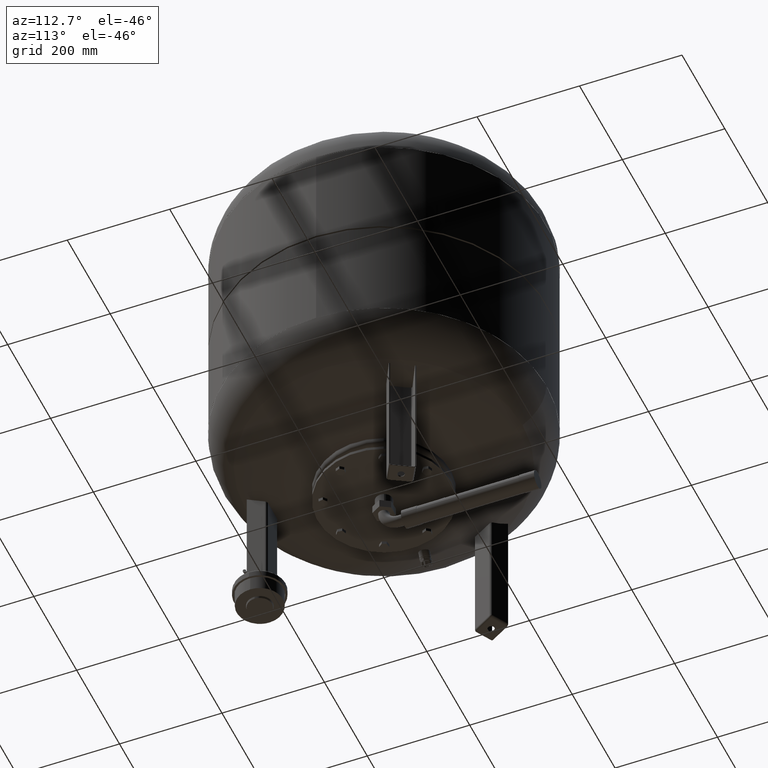
[diagram: clean part render]
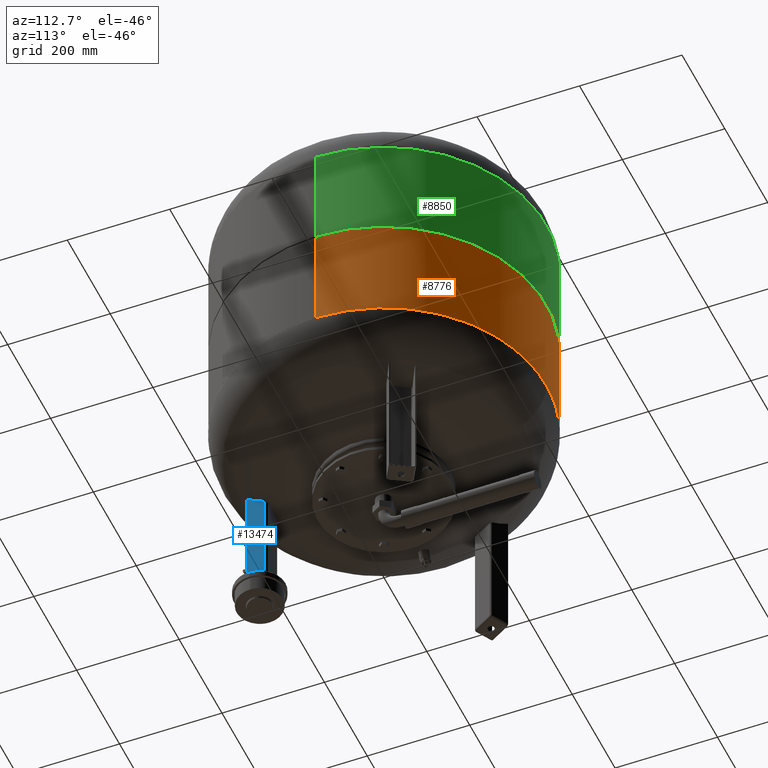
[diagram: same view with three faces highlighted in distinct colors, each labeled with its STEP entity id]
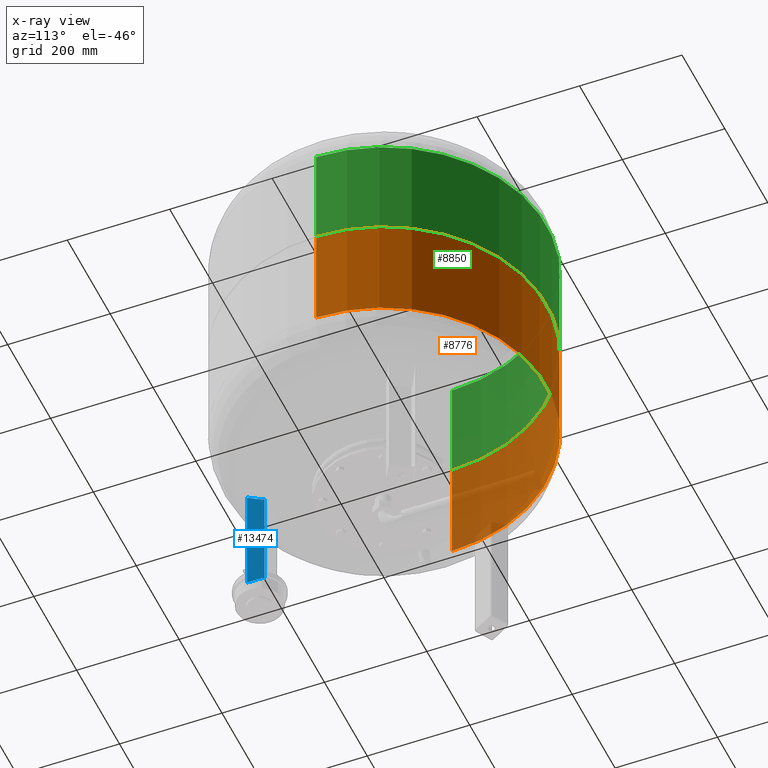
[diagram: x-ray of the same camera — body ghosted, the three highlighted faces saturated]
A machine part, auxiliary view with three faces highlighted in distinct colors.
The next image is the same camera in x-ray (body ghosted, the three faces saturated) — at least one of them is partly hidden behind the body in this view.
Their STEP definitions:

[orange] entity #8776 — the highlighted cylindrical surface (partial cylindrical patch) has radius 317 mm, axis along (-0, 0, -1).
#8735=CARTESIAN_POINT('',(-4.392344E-015,1.021843E-030,456.0));
#8736=DIRECTION('',(-4.223408E-017,9.825415E-033,-1.0));
#8737=DIRECTION('',(1.0,0.0,0.0));
#8738=AXIS2_PLACEMENT_3D('',#8735,#8736,#8737);
#8739=CYLINDRICAL_SURFACE('',#8738,317.0);
#8740=CARTESIAN_POINT('',(317.0,3.882130E-014,352.0));
#8741=VERTEX_POINT('',#8740);
#8742=CARTESIAN_POINT('',(316.999999999999940,3.882130E-014,560.0));
#8743=VERTEX_POINT('',#8742);
#8744=CARTESIAN_POINT('',(317.0,3.882130E-014,352.0));
#8745=DIRECTION('',(0.0,0.0,1.0));
#8746=VECTOR('',#8745,208.0);
#8747=LINE('',#8744,#8746);
#8748=EDGE_CURVE('',#8741,#8743,#8747,.T.);
#8749=ORIENTED_EDGE('',*,*,#8748,.F.);
#8750=CARTESIAN_POINT('',(-317.0,-1.282117E-018,352.0));
#8751=VERTEX_POINT('',#8750);
#8752=CARTESIAN_POINT('',(-8.784689E-015,2.043686E-030,352.0));
#8753=DIRECTION('',(0.0,0.0,-1.0));
#8754=DIRECTION('',(1.0,0.0,0.0));
#8755=AXIS2_PLACEMENT_3D('',#8752,#8753,#8754);
#8756=CIRCLE('',#8755,317.0);
#8757=EDGE_CURVE('',#8751,#8741,#8756,.T.);
#8758=ORIENTED_EDGE('',*,*,#8757,.F.);
#8759=CARTESIAN_POINT('',(-317.0,-1.282117E-018,560.000000000000110));
#8760=VERTEX_POINT('',#8759);
#8761=CARTESIAN_POINT('',(-317.0,-1.282117E-018,352.0));
#8762=DIRECTION('',(0.0,0.0,1.0));
#8763=VECTOR('',#8762,208.000000000000110);
#8764=LINE('',#8761,#8763);
#8765=EDGE_CURVE('',#8751,#8760,#8764,.T.);
#8766=ORIENTED_EDGE('',*,*,#8765,.T.);
#8767=CARTESIAN_POINT('',(-4.065149E-031,4.830380E-046,560.0));
#8768=DIRECTION('',(0.0,0.0,-1.0));
#8769=DIRECTION('',(1.0,0.0,0.0));
#8770=AXIS2_PLACEMENT_3D('',#8767,#8768,#8769);
#8771=CIRCLE('',#8770,316.999999999999940);
#8772=EDGE_CURVE('',#8760,#8743,#8771,.T.);
#8773=ORIENTED_EDGE('',*,*,#8772,.T.);
#8774=EDGE_LOOP('',(#8749,#8758,#8766,#8773));
#8775=FACE_OUTER_BOUND('',#8774,.T.);
#8776=ADVANCED_FACE('',(#8775),#8739,.T.);

[blue] entity #13474 — the highlighted planar face has unit normal (1, 0, 0).
#13221=CARTESIAN_POINT('',(25.000000000000007,-257.499999999999940,266.651109274815040));
#13222=VERTEX_POINT('',#13221);
#13230=CARTESIAN_POINT('',(25.0,-222.500000000000000,247.889783531367410));
#13231=VERTEX_POINT('',#13230);
#13232=CARTESIAN_POINT('',(24.999999999999925,-8.526513E-014,705.0));
#13233=DIRECTION('',(-1.0,0.0,0.0));
#13234=DIRECTION('',(0.0,0.0,1.0));
#13235=AXIS2_PLACEMENT_3D('',#13232,#13233,#13234);
#13236=CIRCLE('',#13235,508.385680364819170);
#13237=EDGE_CURVE('',#13231,#13222,#13236,.T.);
#13431=CARTESIAN_POINT('',(24.999999999999996,-222.500000000000000,45.999999999999979));
#13432=VERTEX_POINT('',#13431);
#13433=CARTESIAN_POINT('',(25.0,-222.500000000000000,247.889783531367410));
#13434=DIRECTION('',(0.0,0.0,-1.0));
#13435=VECTOR('',#13434,201.889783531367440);
#13436=LINE('',#13433,#13435);
#13437=EDGE_CURVE('',#13231,#13432,#13436,.T.);
#13451=CARTESIAN_POINT('',(24.999999999999996,-217.500000000000000,45.999999999999979));
#13452=DIRECTION('',(1.0,0.0,0.0));
#13453=DIRECTION('',(0.0,1.0,0.0));
#13454=AXIS2_PLACEMENT_3D('',#13451,#13452,#13453);
#13455=PLANE('',#13454);
#13456=CARTESIAN_POINT('',(25.000000000000007,-257.500000000000000,45.999999999999979));
#13457=VERTEX_POINT('',#13456);
#13458=CARTESIAN_POINT('',(25.000000000000007,-257.500000000000000,45.999999999999979));
#13459=DIRECTION('',(0.0,0.0,1.0));
#13460=VECTOR('',#13459,220.651109274815070);
#13461=LINE('',#13458,#13460);
#13462=EDGE_CURVE('',#13457,#13222,#13461,.T.);
#13463=ORIENTED_EDGE('',*,*,#13462,.F.);
#13464=CARTESIAN_POINT('',(24.999999999999996,-222.500000000000000,45.999999999999979));
#13465=DIRECTION('',(0.0,-1.0,0.0));
#13466=VECTOR('',#13465,35.0);
#13467=LINE('',#13464,#13466);
#13468=EDGE_CURVE('',#13432,#13457,#13467,.T.);
#13469=ORIENTED_EDGE('',*,*,#13468,.F.);
#13470=ORIENTED_EDGE('',*,*,#13437,.F.);
#13471=ORIENTED_EDGE('',*,*,#13237,.T.);
#13472=EDGE_LOOP('',(#13463,#13469,#13470,#13471));
#13473=FACE_OUTER_BOUND('',#13472,.T.);
#13474=ADVANCED_FACE('',(#13473),#13455,.T.);

[green] entity #8850 — the highlighted cylindrical surface (partial cylindrical patch) has radius 317 mm, axis along (-0, 0, -1).
#8784=CARTESIAN_POINT('',(316.999999999999830,3.882130E-014,563.500000000000000));
#8785=VERTEX_POINT('',#8784);
#8801=CARTESIAN_POINT('',(-316.999999999999940,-1.282117E-018,563.500000000000000));
#8802=VERTEX_POINT('',#8801);
#8809=CARTESIAN_POINT('',(1.478193E-016,-3.438895E-032,563.500000000000000));
#8810=DIRECTION('',(0.0,0.0,-1.0));
#8811=DIRECTION('',(1.0,0.0,0.0));
#8812=AXIS2_PLACEMENT_3D('',#8809,#8810,#8811);
#8813=CIRCLE('',#8812,316.999999999999830);
#8814=EDGE_CURVE('',#8802,#8785,#8813,.T.);
#8819=CARTESIAN_POINT('',(5.224356E-015,-1.215404E-030,683.700000000000050));
#8820=DIRECTION('',(-4.223408E-017,9.825415E-033,-1.0));
#8821=DIRECTION('',(1.0,0.0,0.0));
#8822=AXIS2_PLACEMENT_3D('',#8819,#8820,#8821);
#8823=CYLINDRICAL_SURFACE('',#8822,316.999999999999940);
#8824=CARTESIAN_POINT('',(317.0,3.882130E-014,768.0));
#8825=VERTEX_POINT('',#8824);
#8826=CARTESIAN_POINT('',(316.999999999999830,3.882130E-014,563.500000000000000));
#8827=DIRECTION('',(0.0,0.0,1.0));
#8828=VECTOR('',#8827,204.500000000000000);
#8829=LINE('',#8826,#8828);
#8830=EDGE_CURVE('',#8785,#8825,#8829,.T.);
#8831=ORIENTED_EDGE('',*,*,#8830,.F.);
#8832=ORIENTED_EDGE('',*,*,#8814,.F.);
#8833=CARTESIAN_POINT('',(-316.999999999999940,-1.282117E-018,768.000000000000110));
#8834=VERTEX_POINT('',#8833);
#8835=CARTESIAN_POINT('',(-316.999999999999940,-1.282117E-018,563.500000000000000));
#8836=DIRECTION('',(0.0,0.0,1.0));
#8837=VECTOR('',#8836,204.500000000000110);
#8838=LINE('',#8835,#8837);
#8839=EDGE_CURVE('',#8802,#8834,#8838,.T.);
#8840=ORIENTED_EDGE('',*,*,#8839,.T.);
#8841=CARTESIAN_POINT('',(8.784689E-015,-2.043686E-030,768.000000000000110));
#8842=DIRECTION('',(0.0,0.0,-1.0));
#8843=DIRECTION('',(1.0,0.0,0.0));
#8844=AXIS2_PLACEMENT_3D('',#8841,#8842,#8843);
#8845=CIRCLE('',#8844,317.0);
#8846=EDGE_CURVE('',#8834,#8825,#8845,.T.);
#8847=ORIENTED_EDGE('',*,*,#8846,.T.);
#8848=EDGE_LOOP('',(#8831,#8832,#8840,#8847));
#8849=FACE_OUTER_BOUND('',#8848,.T.);
#8850=ADVANCED_FACE('',(#8849),#8823,.T.);